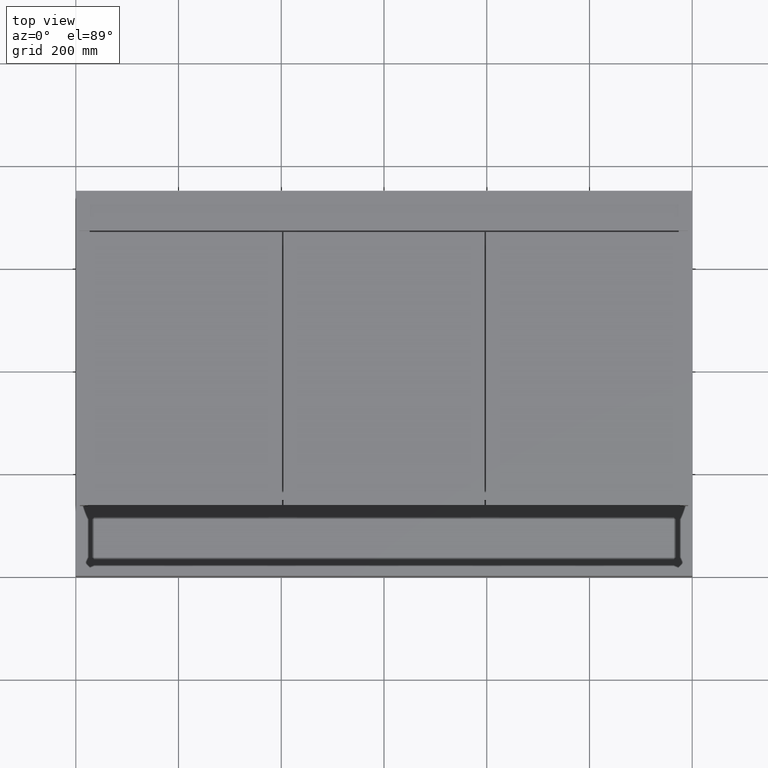
[diagram: clean part render]
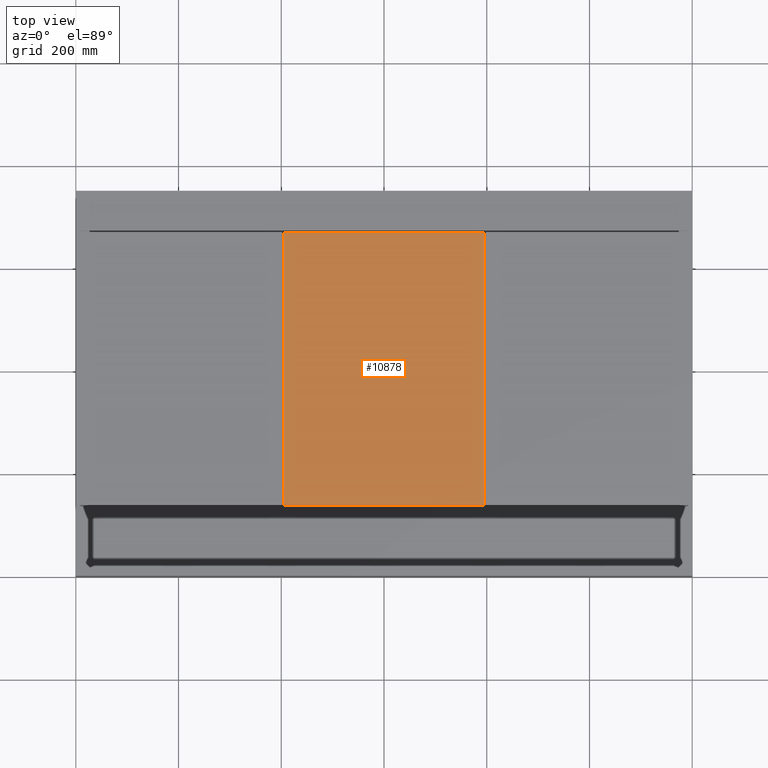
[diagram: same view with one face highlighted and labeled with its STEP entity id]
A machine part, top view. The second image highlights one B-rep face of the part: STEP entity #10878.
In plain terms, the highlighted planar face has unit normal (0, 0, 1).
Its self-contained STEP definition (entity closure, byte-faithful):
#1817 = ORIENTED_EDGE ( 'NONE', *, *, #16324, .T. ) ;
#2027 = ORIENTED_EDGE ( 'NONE', *, *, #13115, .T. ) ;
#2448 = CARTESIAN_POINT ( 'NONE',  ( 404.6633333299999435, 668.9999000000001388, 6.071532165918824830E-14 ) ) ;
#2487 = LINE ( 'NONE', #7906, #12190 ) ;
#2790 = AXIS2_PLACEMENT_3D ( 'NONE', #4269, #9694, #15115 ) ;
#2867 = CARTESIAN_POINT ( 'NONE',  ( 795.3399999999999181, 668.9999000000001388, 6.071532165918824830E-14 ) ) ;
#2916 = CARTESIAN_POINT ( 'NONE',  ( 404.6633333300000004, 138.0000000000000000, 6.071532165918824830E-14 ) ) ;
#2939 = CARTESIAN_POINT ( 'NONE',  ( 404.6633333300000004, 138.0000000000000000, 6.071532165918824830E-14 ) ) ;
#3591 = VECTOR ( 'NONE', #8358, 1000.000000000000000 ) ;
#4169 = VERTEX_POINT ( 'NONE', #16144 ) ;
#4269 = CARTESIAN_POINT ( 'NONE',  ( 0.0000000000000000000, 0.0000000000000000000, 6.071532165918824830E-14 ) ) ;
#4865 = LINE ( 'NONE', #10301, #15534 ) ;
#5177 = VERTEX_POINT ( 'NONE', #8676 ) ;
#6516 = EDGE_LOOP ( 'NONE', ( #8543, #1817, #8286, #2027 ) ) ;
#6564 = VERTEX_POINT ( 'NONE', #2448 ) ;
#7906 = CARTESIAN_POINT ( 'NONE',  ( 404.6633333299999435, 668.9999000000001388, 6.071532165918824830E-14 ) ) ;
#8283 = DIRECTION ( 'NONE',  ( -2.090815882686901485E-16, 1.000000000000000000, 0.0000000000000000000 ) ) ;
#8286 = ORIENTED_EDGE ( 'NONE', *, *, #11667, .T. ) ;
#8358 = DIRECTION ( 'NONE',  ( 1.000000000000000000, 7.104487670637807378E-17, 0.0000000000000000000 ) ) ;
#8543 = ORIENTED_EDGE ( 'NONE', *, *, #16500, .T. ) ;
#8676 = CARTESIAN_POINT ( 'NONE',  ( 795.3400000000000318, 138.0000000000000000, 6.071532165918824830E-14 ) ) ;
#9694 = DIRECTION ( 'NONE',  ( 0.0000000000000000000, 0.0000000000000000000, 1.000000000000000000 ) ) ;
#10301 = CARTESIAN_POINT ( 'NONE',  ( 404.6633333299999435, 668.9999000000001388, 6.071532165918824830E-14 ) ) ;
#10878 = ADVANCED_FACE ( 'NONE', ( #11035 ), #16457, .T. ) ;
#11035 = FACE_OUTER_BOUND ( 'NONE', #6516, .T. ) ;
#11667 = EDGE_CURVE ( 'NONE', #5177, #4169, #15055, .T. ) ;
#12190 = VECTOR ( 'NONE', #13350, 1000.000000000000000 ) ;
#13115 = EDGE_CURVE ( 'NONE', #4169, #6564, #2487, .T. ) ;
#13350 = DIRECTION ( 'NONE',  ( -1.000000000000000000, 1.412426827213328495E-38, 0.0000000000000000000 ) ) ;
#15055 = LINE ( 'NONE', #2867, #16727 ) ;
#15115 = DIRECTION ( 'NONE',  ( 1.000000000000000000, -1.412426827213328495E-38, 0.0000000000000000000 ) ) ;
#15128 = LINE ( 'NONE', #2939, #3591 ) ;
#15534 = VECTOR ( 'NONE', #15723, 1000.000000000000000 ) ;
#15669 = VERTEX_POINT ( 'NONE', #2916 ) ;
#15723 = DIRECTION ( 'NONE',  ( 1.045407941343450866E-16, -1.000000000000000000, 0.0000000000000000000 ) ) ;
#16144 = CARTESIAN_POINT ( 'NONE',  ( 795.3399999999999181, 668.9999000000001388, 6.071532165918824830E-14 ) ) ;
#16324 = EDGE_CURVE ( 'NONE', #15669, #5177, #15128, .T. ) ;
#16457 = PLANE ( 'NONE',  #2790 ) ;
#16500 = EDGE_CURVE ( 'NONE', #6564, #15669, #4865, .T. ) ;
#16727 = VECTOR ( 'NONE', #8283, 1000.000000000000000 ) ;